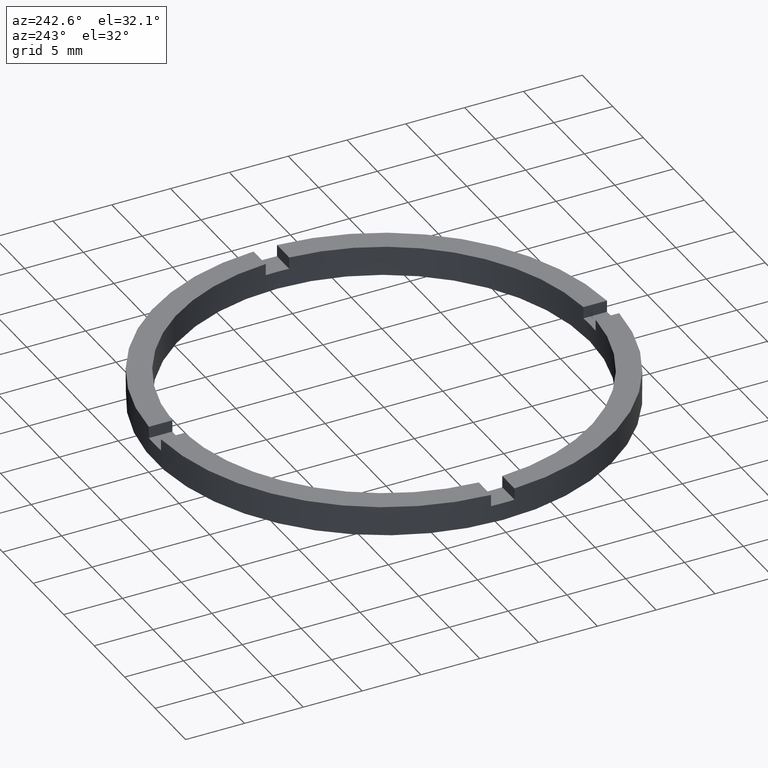
[diagram: clean part render]
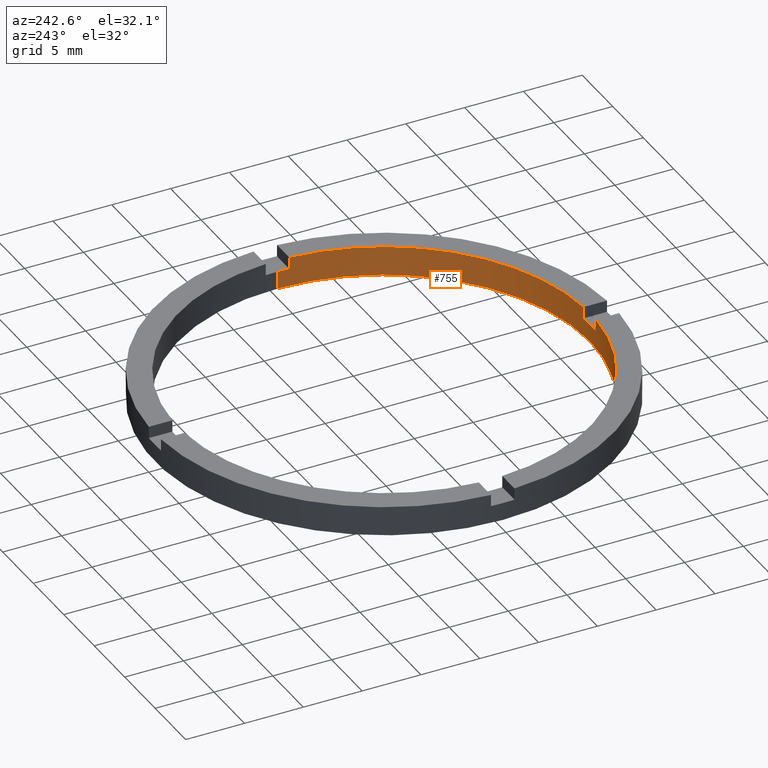
[diagram: same view with one face highlighted and labeled with its STEP entity id]
A machine part, auxiliary view. The second image highlights one B-rep face of the part: STEP entity #755.
In plain terms, the highlighted cylindrical surface (partial cylindrical patch) has radius 17.5 mm, axis along (-0, -0, -1).
Its self-contained STEP definition (entity closure, byte-faithful):
#5 = DIRECTION ( 'NONE',  ( -1.000000000000000000, 0.000000000000000000, 0.000000000000000000 ) ) ;
#6 = CARTESIAN_POINT ( 'NONE',  ( 0.000000000000000000, 0.000000000000000000, 1.500000000000000000 ) ) ;
#49 = VECTOR ( 'NONE', #740, 1000.000000000000000 ) ;
#86 = CARTESIAN_POINT ( 'NONE',  ( 0.9999999999998377964, -17.47140520965616162, 2.500000000000000000 ) ) ;
#96 = VERTEX_POINT ( 'NONE', #746 ) ;
#99 = CARTESIAN_POINT ( 'NONE',  ( 17.47140520965614385, -1.000000000000158762, 2.500000000000000000 ) ) ;
#103 = AXIS2_PLACEMENT_3D ( 'NONE', #617, #348, #5 ) ;
#108 = ORIENTED_EDGE ( 'NONE', *, *, #435, .T. ) ;
#130 = DIRECTION ( 'NONE',  ( 1.000000000000000000, 0.000000000000000000, 0.000000000000000000 ) ) ;
#133 = DIRECTION ( 'NONE',  ( 0.000000000000000000, 0.000000000000000000, 1.000000000000000000 ) ) ;
#146 = ORIENTED_EDGE ( 'NONE', *, *, #498, .T. ) ;
#169 = VECTOR ( 'NONE', #721, 1000.000000000000000 ) ;
#173 = VERTEX_POINT ( 'NONE', #518 ) ;
#174 = VECTOR ( 'NONE', #187, 1000.000000000000000 ) ;
#176 = CYLINDRICAL_SURFACE ( 'NONE', #103, 17.50000000000000355 ) ;
#178 = VERTEX_POINT ( 'NONE', #756 ) ;
#187 = DIRECTION ( 'NONE',  ( 0.000000000000000000, 0.000000000000000000, 1.000000000000000000 ) ) ;
#191 = CARTESIAN_POINT ( 'NONE',  ( -17.50000000000000355, 0.000000000000000000, 0.000000000000000000 ) ) ;
#198 = DIRECTION ( 'NONE',  ( -0.000000000000000000, 0.000000000000000000, 1.000000000000000000 ) ) ;
#204 = VERTEX_POINT ( 'NONE', #205 ) ;
#205 = CARTESIAN_POINT ( 'NONE',  ( -17.50000000000000355, 0.000000000000000000, 1.500000000000000000 ) ) ;
#217 = VERTEX_POINT ( 'NONE', #268 ) ;
#237 = CARTESIAN_POINT ( 'NONE',  ( 17.47140520965614385, -1.000000000000158762, 2.500000000000000000 ) ) ;
#251 = CARTESIAN_POINT ( 'NONE',  ( -17.47140520965615096, -1.000000000000023981, 2.500000000000000000 ) ) ;
#252 = DIRECTION ( 'NONE',  ( 1.000000000000000000, 0.000000000000000000, 0.000000000000000000 ) ) ;
#258 = EDGE_CURVE ( 'NONE', #178, #632, #290, .T. ) ;
#259 = AXIS2_PLACEMENT_3D ( 'NONE', #742, #558, #549 ) ;
#268 = CARTESIAN_POINT ( 'NONE',  ( 17.50000000000000355, 2.143131898507868643E-15, 1.500000000000000000 ) ) ;
#275 = VECTOR ( 'NONE', #704, 1000.000000000000000 ) ;
#290 = LINE ( 'NONE', #86, #275 ) ;
#302 = DIRECTION ( 'NONE',  ( 1.000000000000000000, 0.000000000000000000, 0.000000000000000000 ) ) ;
#309 = DIRECTION ( 'NONE',  ( 0.000000000000000000, 0.000000000000000000, 1.000000000000000000 ) ) ;
#319 = CARTESIAN_POINT ( 'NONE',  ( -17.47140520965615096, -1.000000000000023981, 1.500000000000000000 ) ) ;
#320 = DIRECTION ( 'NONE',  ( -0.000000000000000000, -0.000000000000000000, -1.000000000000000000 ) ) ;
#331 = AXIS2_PLACEMENT_3D ( 'NONE', #420, #198, #302 ) ;
#338 = EDGE_CURVE ( 'NONE', #204, #379, #534, .T. ) ;
#341 = AXIS2_PLACEMENT_3D ( 'NONE', #670, #747, #130 ) ;
#345 = ORIENTED_EDGE ( 'NONE', *, *, #258, .F. ) ;
#348 = DIRECTION ( 'NONE',  ( -0.000000000000000000, -0.000000000000000000, -1.000000000000000000 ) ) ;
#350 = ORIENTED_EDGE ( 'NONE', *, *, #581, .F. ) ;
#360 = CARTESIAN_POINT ( 'NONE',  ( -1.000000000000161871, -17.47140520965614030, 1.500000000000000000 ) ) ;
#364 = ORIENTED_EDGE ( 'NONE', *, *, #764, .T. ) ;
#367 = ORIENTED_EDGE ( 'NONE', *, *, #717, .F. ) ;
#376 = DIRECTION ( 'NONE',  ( 0.000000000000000000, 0.000000000000000000, 1.000000000000000000 ) ) ;
#379 = VERTEX_POINT ( 'NONE', #191 ) ;
#392 = AXIS2_PLACEMENT_3D ( 'NONE', #497, #133, #252 ) ;
#397 = CIRCLE ( 'NONE', #392, 17.50000000000000355 ) ;
#403 = CIRCLE ( 'NONE', #331, 17.50000000000000355 ) ;
#407 = FACE_OUTER_BOUND ( 'NONE', #733, .T. ) ;
#408 = LINE ( 'NONE', #654, #169 ) ;
#411 = CARTESIAN_POINT ( 'NONE',  ( 0.9999999999998373523, -17.47140520965615806, 1.500000000000000000 ) ) ;
#415 = VECTOR ( 'NONE', #309, 1000.000000000000000 ) ;
#417 = ORIENTED_EDGE ( 'NONE', *, *, #530, .T. ) ;
#420 = CARTESIAN_POINT ( 'NONE',  ( 0.000000000000000000, 0.000000000000000000, 1.500000000000000000 ) ) ;
#422 = ORIENTED_EDGE ( 'NONE', *, *, #647, .T. ) ;
#435 = EDGE_CURVE ( 'NONE', #217, #173, #408, .T. ) ;
#437 = CIRCLE ( 'NONE', #259, 17.50000000000000355 ) ;
#443 = CIRCLE ( 'NONE', #341, 17.50000000000000355 ) ;
#450 = CARTESIAN_POINT ( 'NONE',  ( -17.47140520965615096, -1.000000000000023981, 2.500000000000000000 ) ) ;
#469 = VERTEX_POINT ( 'NONE', #99 ) ;
#476 = ORIENTED_EDGE ( 'NONE', *, *, #338, .F. ) ;
#490 = AXIS2_PLACEMENT_3D ( 'NONE', #6, #504, #672 ) ;
#497 = CARTESIAN_POINT ( 'NONE',  ( 0.000000000000000000, 0.000000000000000000, 1.500000000000000000 ) ) ;
#498 = EDGE_CURVE ( 'NONE', #520, #632, #403, .T. ) ;
#504 = DIRECTION ( 'NONE',  ( 0.000000000000000000, 0.000000000000000000, 1.000000000000000000 ) ) ;
#518 = CARTESIAN_POINT ( 'NONE',  ( 17.50000000000000355, 2.143131898507868643E-15, 0.000000000000000000 ) ) ;
#520 = VERTEX_POINT ( 'NONE', #360 ) ;
#526 = EDGE_CURVE ( 'NONE', #520, #614, #674, .T. ) ;
#530 = EDGE_CURVE ( 'NONE', #178, #469, #437, .T. ) ;
#534 = LINE ( 'NONE', #659, #49 ) ;
#538 = EDGE_CURVE ( 'NONE', #96, #217, #680, .T. ) ;
#549 = DIRECTION ( 'NONE',  ( 1.000000000000000000, 0.000000000000000000, 0.000000000000000000 ) ) ;
#558 = DIRECTION ( 'NONE',  ( 0.000000000000000000, 0.000000000000000000, 1.000000000000000000 ) ) ;
#578 = EDGE_CURVE ( 'NONE', #580, #728, #684, .T. ) ;
#580 = VERTEX_POINT ( 'NONE', #450 ) ;
#581 = EDGE_CURVE ( 'NONE', #379, #173, #681, .T. ) ;
#598 = CARTESIAN_POINT ( 'NONE',  ( -1.000000000000162315, -17.47140520965614030, 2.500000000000000000 ) ) ;
#613 = DIRECTION ( 'NONE',  ( 1.000000000000000000, 0.000000000000000000, 0.000000000000000000 ) ) ;
#614 = VERTEX_POINT ( 'NONE', #735 ) ;
#617 = CARTESIAN_POINT ( 'NONE',  ( 0.000000000000000000, 0.000000000000000000, 2.500000000000000000 ) ) ;
#624 = AXIS2_PLACEMENT_3D ( 'NONE', #777, #376, #613 ) ;
#632 = VERTEX_POINT ( 'NONE', #411 ) ;
#647 = EDGE_CURVE ( 'NONE', #204, #728, #397, .T. ) ;
#654 = CARTESIAN_POINT ( 'NONE',  ( 17.50000000000000355, 2.143131898507868643E-15, 2.500000000000000000 ) ) ;
#659 = CARTESIAN_POINT ( 'NONE',  ( -17.50000000000000355, 0.000000000000000000, 2.500000000000000000 ) ) ;
#669 = VECTOR ( 'NONE', #320, 1000.000000000000000 ) ;
#670 = CARTESIAN_POINT ( 'NONE',  ( 0.000000000000000000, 0.000000000000000000, 2.500000000000000000 ) ) ;
#672 = DIRECTION ( 'NONE',  ( 1.000000000000000000, 0.000000000000000000, 0.000000000000000000 ) ) ;
#674 = LINE ( 'NONE', #598, #415 ) ;
#679 = ORIENTED_EDGE ( 'NONE', *, *, #578, .F. ) ;
#680 = CIRCLE ( 'NONE', #490, 17.50000000000000355 ) ;
#681 = CIRCLE ( 'NONE', #624, 17.50000000000000355 ) ;
#684 = LINE ( 'NONE', #251, #669 ) ;
#694 = LINE ( 'NONE', #237, #174 ) ;
#704 = DIRECTION ( 'NONE',  ( -0.000000000000000000, -0.000000000000000000, -1.000000000000000000 ) ) ;
#717 = EDGE_CURVE ( 'NONE', #96, #469, #694, .T. ) ;
#721 = DIRECTION ( 'NONE',  ( -0.000000000000000000, -0.000000000000000000, -1.000000000000000000 ) ) ;
#728 = VERTEX_POINT ( 'NONE', #319 ) ;
#733 = EDGE_LOOP ( 'NONE', ( #741, #108, #350, #476, #422, #679, #364, #737, #146, #345, #417, #367 ) ) ;
#735 = CARTESIAN_POINT ( 'NONE',  ( -1.000000000000161871, -17.47140520965614030, 2.500000000000000000 ) ) ;
#737 = ORIENTED_EDGE ( 'NONE', *, *, #526, .F. ) ;
#740 = DIRECTION ( 'NONE',  ( -0.000000000000000000, -0.000000000000000000, -1.000000000000000000 ) ) ;
#741 = ORIENTED_EDGE ( 'NONE', *, *, #538, .T. ) ;
#742 = CARTESIAN_POINT ( 'NONE',  ( 0.000000000000000000, 0.000000000000000000, 2.500000000000000000 ) ) ;
#746 = CARTESIAN_POINT ( 'NONE',  ( 17.47140520965614385, -1.000000000000158762, 1.500000000000000000 ) ) ;
#747 = DIRECTION ( 'NONE',  ( 0.000000000000000000, 0.000000000000000000, 1.000000000000000000 ) ) ;
#755 = ADVANCED_FACE ( 'NONE', ( #407 ), #176, .F. ) ;
#756 = CARTESIAN_POINT ( 'NONE',  ( 0.9999999999998373523, -17.47140520965615806, 2.500000000000000000 ) ) ;
#764 = EDGE_CURVE ( 'NONE', #580, #614, #443, .T. ) ;
#777 = CARTESIAN_POINT ( 'NONE',  ( 0.000000000000000000, 0.000000000000000000, 0.000000000000000000 ) ) ;